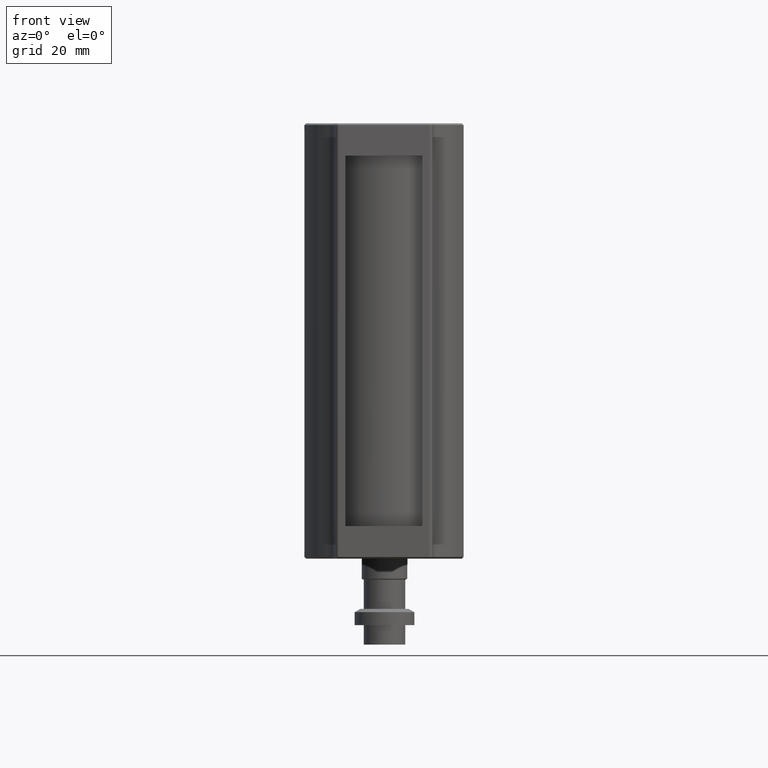
[diagram: clean part render]
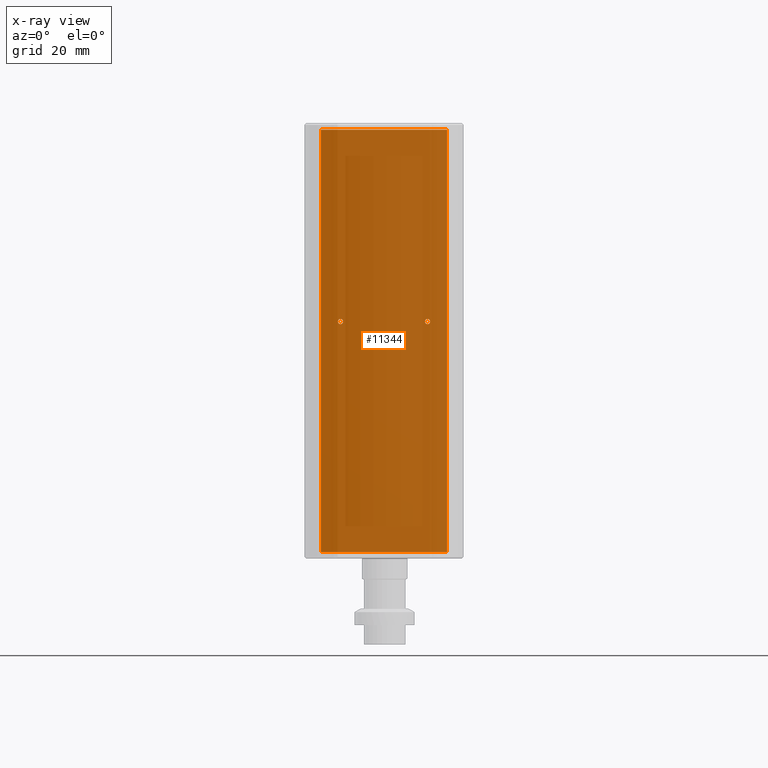
[diagram: x-ray — body ghosted, one internal face saturated and labeled with its STEP entity id]
A machine part, front view, then the same camera in x-ray: the body is ghosted and one INTERNAL B-rep face — a face not visible from any outside direction — is saturated and labeled: STEP entity #11344.
In plain terms, the highlighted planar face has unit normal (-0, 1, 0).
Its self-contained STEP definition (entity closure, byte-faithful):
#287 = FACE_BOUND ( 'NONE', #27120, .T. ) ;
#2701 = EDGE_LOOP ( 'NONE', ( #20069, #36715 ) ) ;
#2797 = ORIENTED_EDGE ( 'NONE', *, *, #42739, .F. ) ;
#4086 = AXIS2_PLACEMENT_3D ( 'NONE', #6234, #56495, #29084 ) ;
#5544 = CIRCLE ( 'NONE', #20110, 0.7999999999999942700 ) ;
#6234 = CARTESIAN_POINT ( 'NONE',  ( -37.56201180637544500, -2.995475796930334900, 65.00000000000000000 ) ) ;
#6950 = DIRECTION ( 'NONE',  ( -0.0000000000000000000, -1.000000000000000000, -0.0000000000000000000 ) ) ;
#7122 = VECTOR ( 'NONE', #43931, 1000.000000000000000 ) ;
#7553 = CARTESIAN_POINT ( 'NONE',  ( -50.96201180637547900, -2.995475796930338500, 5.949999999999985100 ) ) ;
#9229 = EDGE_LOOP ( 'NONE', ( #28612, #42752, #28339, #70564 ) ) ;
#9496 = CARTESIAN_POINT ( 'NONE',  ( -24.16201180637542800, -2.995475796930334900, 6.749999999999989300 ) ) ;
#9876 = DIRECTION ( 'NONE',  ( -0.0000000000000000000, -1.000000000000000000, -0.0000000000000000000 ) ) ;
#10373 = EDGE_CURVE ( 'NONE', #38882, #35898, #12754, .T. ) ;
#10820 = PLANE ( 'NONE',  #4086 ) ;
#11344 = ADVANCED_FACE ( 'NONE', ( #71552, #56752, #287 ), #10820, .F. ) ;
#11836 = CARTESIAN_POINT ( 'NONE',  ( -24.16201180637542800, -2.995475796930334900, 5.949999999999994800 ) ) ;
#12476 = DIRECTION ( 'NONE',  ( 0.0000000000000000000, 0.0000000000000000000, -1.000000000000000000 ) ) ;
#12754 = CIRCLE ( 'NONE', #23535, 0.7999999999999942700 ) ;
#14246 = VERTEX_POINT ( 'NONE', #29396 ) ;
#14600 = DIRECTION ( 'NONE',  ( -1.000000000000000000, -0.0000000000000000000, -0.0000000000000000000 ) ) ;
#15925 = VECTOR ( 'NONE', #14600, 1000.000000000000000 ) ;
#17134 = CARTESIAN_POINT ( 'NONE',  ( -24.16201180637542800, -2.995475796930334900, 5.150000000000001200 ) ) ;
#17488 = EDGE_CURVE ( 'NONE', #58753, #49656, #52001, .T. ) ;
#18016 = AXIS2_PLACEMENT_3D ( 'NONE', #62828, #6950, #52088 ) ;
#18527 = CARTESIAN_POINT ( 'NONE',  ( -50.96201180637547900, -2.995475796930338500, 5.949999999999985100 ) ) ;
#18828 = EDGE_CURVE ( 'NONE', #14246, #27691, #5544, .T. ) ;
#19814 = EDGE_CURVE ( 'NONE', #49656, #28731, #31430, .T. ) ;
#20069 = ORIENTED_EDGE ( 'NONE', *, *, #10373, .F. ) ;
#20110 = AXIS2_PLACEMENT_3D ( 'NONE', #18527, #29741, #12476 ) ;
#23535 = AXIS2_PLACEMENT_3D ( 'NONE', #11836, #9876, #54559 ) ;
#23694 = DIRECTION ( 'NONE',  ( 0.0000000000000000000, 0.0000000000000000000, 1.000000000000000000 ) ) ;
#24058 = DIRECTION ( 'NONE',  ( -0.0000000000000000000, -1.000000000000000000, -0.0000000000000000000 ) ) ;
#24734 = CARTESIAN_POINT ( 'NONE',  ( -56.96201180637545000, -2.995475796930337600, -65.00000000000000000 ) ) ;
#26311 = CARTESIAN_POINT ( 'NONE',  ( -50.96201180637547900, -2.995475796930338500, 5.149999999999990600 ) ) ;
#27120 = EDGE_LOOP ( 'NONE', ( #2797, #49716 ) ) ;
#27691 = VERTEX_POINT ( 'NONE', #26311 ) ;
#28339 = ORIENTED_EDGE ( 'NONE', *, *, #33126, .F. ) ;
#28612 = ORIENTED_EDGE ( 'NONE', *, *, #19814, .F. ) ;
#28731 = VERTEX_POINT ( 'NONE', #71747 ) ;
#28954 = AXIS2_PLACEMENT_3D ( 'NONE', #7553, #24058, #40132 ) ;
#29084 = DIRECTION ( 'NONE',  ( -1.000000000000000000, -1.269309860470834500E-016, 0.0000000000000000000 ) ) ;
#29396 = CARTESIAN_POINT ( 'NONE',  ( -50.96201180637547900, -2.995475796930338500, 6.749999999999978700 ) ) ;
#29741 = DIRECTION ( 'NONE',  ( -0.0000000000000000000, -1.000000000000000000, -0.0000000000000000000 ) ) ;
#30172 = CARTESIAN_POINT ( 'NONE',  ( -56.96201180637545000, -2.995475796930337600, 65.00000000000000000 ) ) ;
#31430 = LINE ( 'NONE', #51423, #59203 ) ;
#33126 = EDGE_CURVE ( 'NONE', #54174, #58753, #44657, .T. ) ;
#34957 = LINE ( 'NONE', #54620, #7122 ) ;
#35551 = VECTOR ( 'NONE', #23694, 1000.000000000000000 ) ;
#35898 = VERTEX_POINT ( 'NONE', #9496 ) ;
#36715 = ORIENTED_EDGE ( 'NONE', *, *, #61349, .F. ) ;
#38882 = VERTEX_POINT ( 'NONE', #17134 ) ;
#40132 = DIRECTION ( 'NONE',  ( 0.0000000000000000000, 0.0000000000000000000, -1.000000000000000000 ) ) ;
#40257 = CARTESIAN_POINT ( 'NONE',  ( -56.96201180637545000, -2.995475796930337600, 65.00000000000000000 ) ) ;
#41583 = CARTESIAN_POINT ( 'NONE',  ( -18.16201180637543900, -2.995475796930334900, -65.00000000000000000 ) ) ;
#42739 = EDGE_CURVE ( 'NONE', #27691, #14246, #65412, .T. ) ;
#42752 = ORIENTED_EDGE ( 'NONE', *, *, #17488, .F. ) ;
#43028 = CARTESIAN_POINT ( 'NONE',  ( -37.56201180637544500, -2.995475796930337600, -65.00000000000000000 ) ) ;
#43931 = DIRECTION ( 'NONE',  ( -0.0000000000000000000, -0.0000000000000000000, -1.000000000000000000 ) ) ;
#44657 = LINE ( 'NONE', #43028, #15925 ) ;
#49656 = VERTEX_POINT ( 'NONE', #30172 ) ;
#49716 = ORIENTED_EDGE ( 'NONE', *, *, #18828, .F. ) ;
#51423 = CARTESIAN_POINT ( 'NONE',  ( -37.56201180637544500, -2.995475796930334900, 65.00000000000000000 ) ) ;
#52001 = LINE ( 'NONE', #40257, #35551 ) ;
#52088 = DIRECTION ( 'NONE',  ( 0.0000000000000000000, 0.0000000000000000000, -1.000000000000000000 ) ) ;
#54174 = VERTEX_POINT ( 'NONE', #41583 ) ;
#54559 = DIRECTION ( 'NONE',  ( 0.0000000000000000000, 0.0000000000000000000, -1.000000000000000000 ) ) ;
#54620 = CARTESIAN_POINT ( 'NONE',  ( -18.16201180637543900, -2.995475796930332700, 65.00000000000000000 ) ) ;
#56495 = DIRECTION ( 'NONE',  ( -1.269309860470834500E-016, 1.000000000000000000, 0.0000000000000000000 ) ) ;
#56752 = FACE_BOUND ( 'NONE', #2701, .T. ) ;
#57039 = DIRECTION ( 'NONE',  ( 1.000000000000000000, 1.269309860470834500E-016, -0.0000000000000000000 ) ) ;
#58753 = VERTEX_POINT ( 'NONE', #24734 ) ;
#59203 = VECTOR ( 'NONE', #57039, 1000.000000000000000 ) ;
#60663 = EDGE_CURVE ( 'NONE', #28731, #54174, #34957, .T. ) ;
#61349 = EDGE_CURVE ( 'NONE', #35898, #38882, #66858, .T. ) ;
#62828 = CARTESIAN_POINT ( 'NONE',  ( -24.16201180637542800, -2.995475796930334900, 5.949999999999994800 ) ) ;
#65412 = CIRCLE ( 'NONE', #28954, 0.7999999999999942700 ) ;
#66858 = CIRCLE ( 'NONE', #18016, 0.7999999999999942700 ) ;
#70564 = ORIENTED_EDGE ( 'NONE', *, *, #60663, .F. ) ;
#71552 = FACE_OUTER_BOUND ( 'NONE', #9229, .T. ) ;
#71747 = CARTESIAN_POINT ( 'NONE',  ( -18.16201180637543900, -2.995475796930333600, 65.00000000000000000 ) ) ;